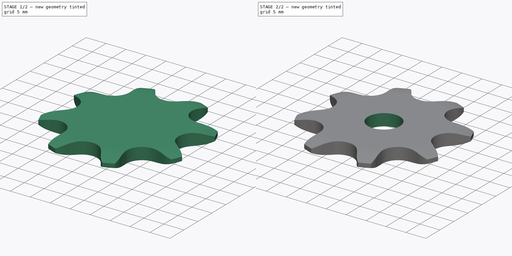
[diagram: build sequence overview — one tinted view per stage of 2, left to right]
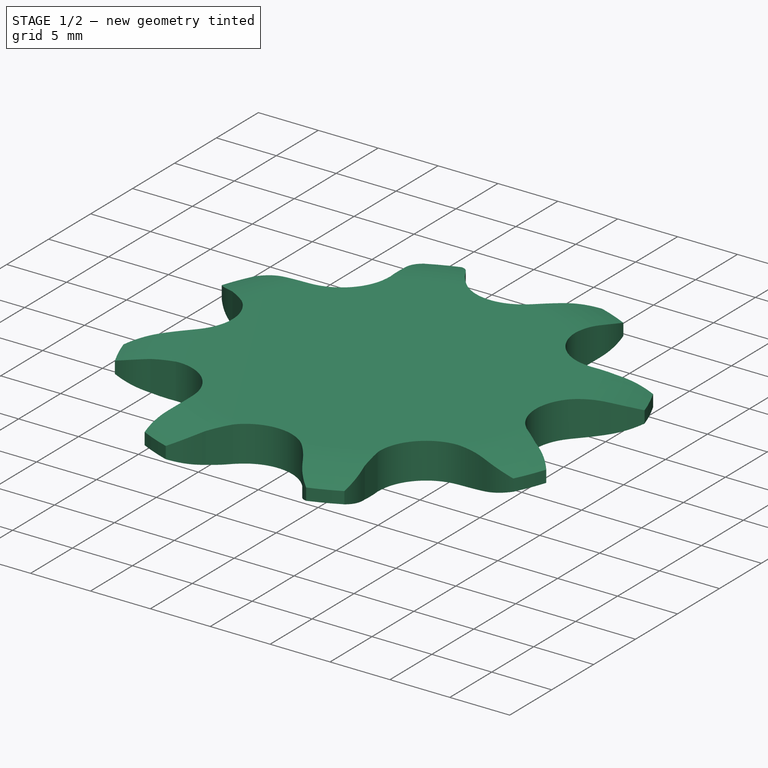
[diagram: stage 1 of 2 — iso view after this stage's code; geometry added in this stage tinted green]
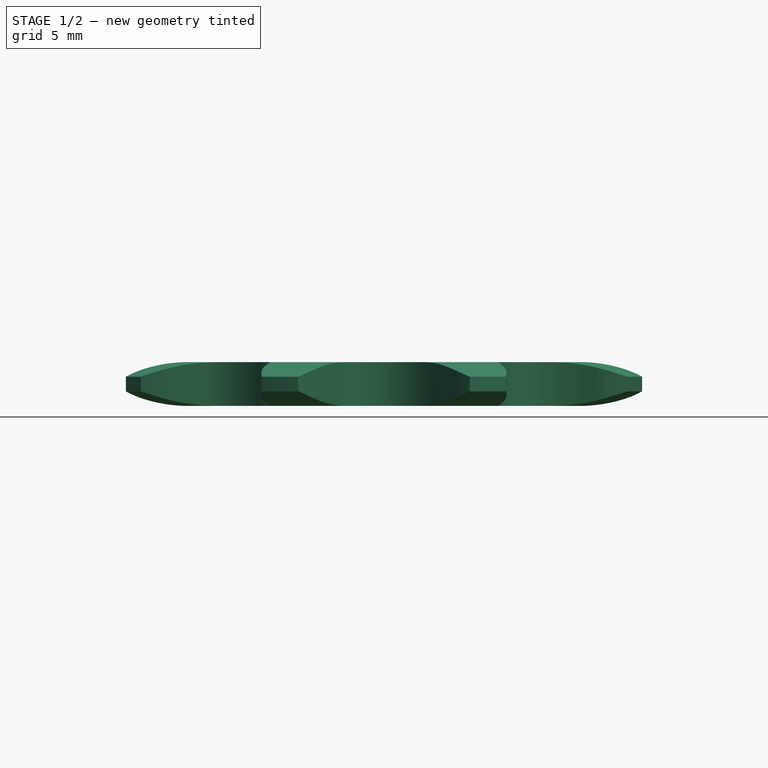
[diagram: stage 1 of 2 — front view after this stage's code; geometry added in this stage tinted green]
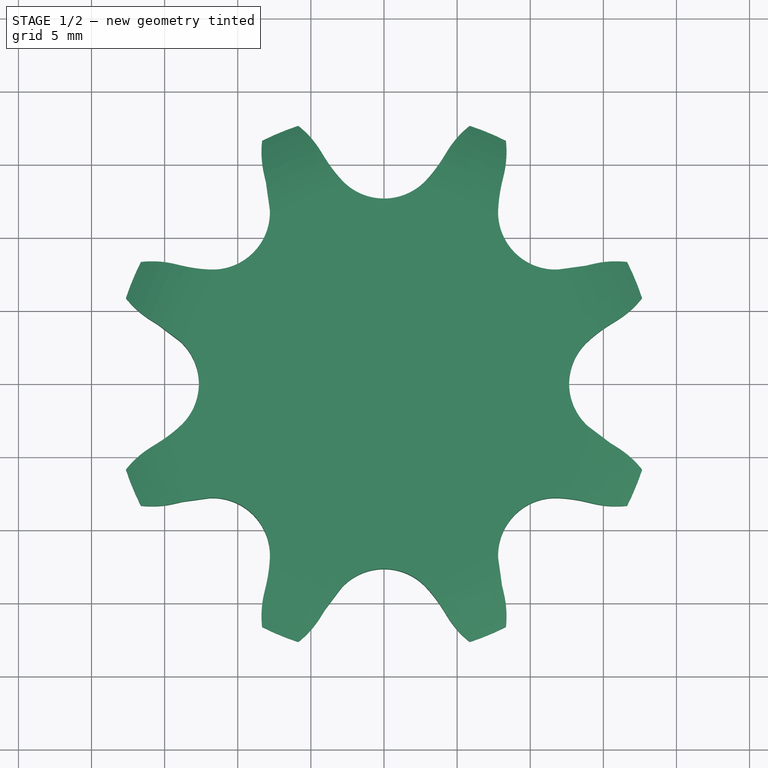
[diagram: stage 1 of 2 — top view after this stage's code; geometry added in this stage tinted green]
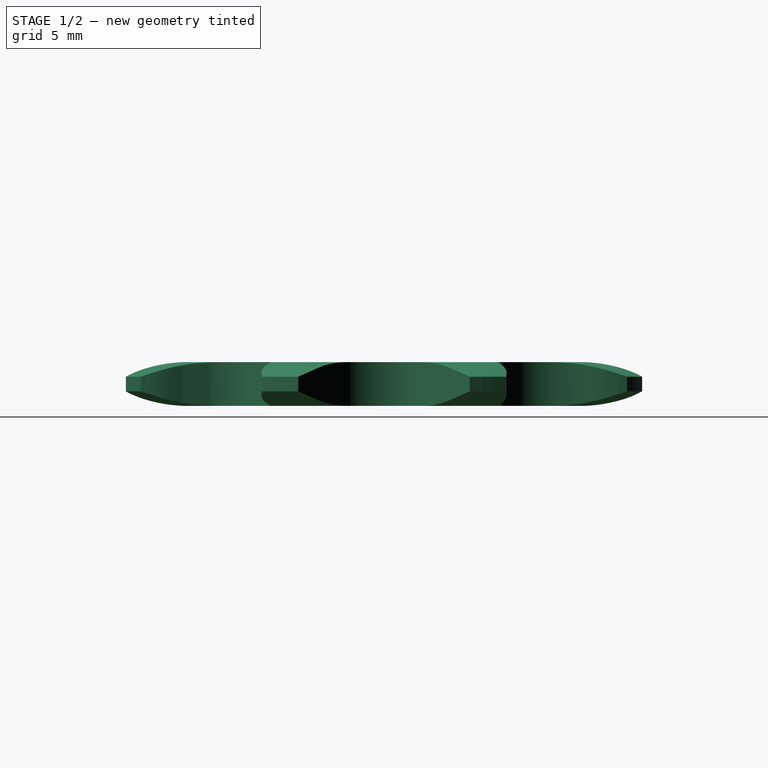
[diagram: stage 1 of 2 — right view after this stage's code; geometry added in this stage tinted green]
FCSTD DOCUMENT  (FreeCAD 0.20R29603 (Git))
Label: Plate Wheel simplex ½x⅛
License: Attribution 4.0 International (CC BY 4.0)
LicenseURL: http://creativecommons.org/licenses/by/4.0/
objects: Sketcher::SketchObject×2, Spreadsheet::Sheet×1, Part::Part2DObjectPython×1, PartDesign::Pad×1, PartDesign::Groove×1, PartDesign::Pocket×1, PartDesign::Body×1
note: 10 computed .brp shape members not serialized (recipe doc carries the construction recipe); baked Part::Feature solids carry a one-line shape summary decoded from their .brp

FEATURE [Spreadsheet::Sheet] Spreadsheet  label="Data"
  TeethNumber = 0
  cells = A1=Teeth Number; B1=P (Pitch); C1=Wc (Chain width); D1=Dr (Roller diameter); E1=Tr (Tooth radius); F1=Rw (Radius width); G1=Wt (Tooth width); H1=z (Number of teeth); I1=De (External Diameter); J1=Dp (pitch diameter); K1=D (Hole diameter); L1=H (Total height); A2==hiddenref(.TeethNumber.String); B2(P)==.B3; C2(Wc)==.C3; D2(Dr)==.D3; E2(Tr)==.E3; F2(Rw)==.F3; G2(Wt)==.G3; H2(z)==.H3; I2(De)==.I3; J2(Dp)==.J3; K2(D)==.K3; L2(H)==.L3; A3=Z 8; B3=12.7; C3=3.3; D3=7.75; E3=13; F3=1; G3=3; H3=8; I3=37.2; J3=33.18; K3=8; L3=4; A4=Z 9; B4=12.7; C4=3.3; D4=7.75; E4=13; F4=1; G4=3; H4=9; I4=41.5; J4=37.13; K4=8; L4=4; A5=Z 10; B5=12.7; C5=3.3; D5=7.75; E5=13; F5=1; G5=3; H5=10; I5=46.2; J5=41.1; K5=8; L5=4; A6=Z 11; B6=12.7; C6=3.3; D6=7.75; E6=13; F6=1; G6=3; H6=11; I6=49.6; J6=45.07; K6=8; L6=4; A7=Z 12; B7=12.7; C7=3.3; D7=7.75; E7=13; F7=1; G7=3; H7=12; I7=53.9; J7=49.07; K7=8; L7=4; A8=Z 13; B8=12.7; C8=3.3; D8=7.75; E8=13; F8=1; G8=3; H8=13; I8=58.4; J8=53.06; K8=8; L8=4; A9=Z 14; B9=12.7; C9=3.3; D9=7.75; E9=13; F9=1; G9=3; H9=14; I9=62.8; J9=57.07; K9=8; L9=4; A10=Z 15; B10=12.7; C10=3.3; D10=7.75; E10=13; F10=1; G10=3; H10=15; I10=66.8; J10=61.09; K10=8; L10=4; A11=Z 16; B11=12.7; C11=3.3; D11=7.75; E11=13; F11=1; G11=3; H11=16; I11=70.90000000000001; J11=65.09999999999999; K11=8; L11=4; A12=Z 17; B12=12.7; C12=3.3; D12=7.75; E12=13; F12=1; G12=3; H12=17; I12=74.90000000000001; J12=69.11; K12=8; L12=4; A13=Z 18; B13=12.7; C13=3.3; D13=7.75; E13=13; F13=1; G13=3; H13=18; I13=78.90000000000001; J13=73.14; K13=8; L13=4; A14=Z 19; B14=12.7; C14=3.3; D14=7.75; E14=13; F14=1; G14=3; H14=19; I14=82.90000000000001; J14=77.16; K14=8; L14=4; A15=Z 20; B15=12.7; C15=3.3; D15=7.75; E15=13; F15=1; G15=3; H15=20; I15=86.90000000000001; J15=81.19; K15=8; L15=4; A16=Z 21; B16=12.7; C16=3.3; D16=7.75; E16=13; F16=1; G16=3; H16=21; I16=91; J16=85.22; K16=8; L16=4; A17=Z 22; B17=12.7; C17=3.3; D17=7.75; E17=13; F17=1; G17=3; H17=22; +340 more cells
  expr: .TeethNumber.Enum = cells[<<A3:|>>]
  expr: .cells.Bind.B2.ZZ2 = tuple(.cells; <<B>> + str(hiddenref(TeethNumber) + 3); <<ZZ>> + str(hiddenref(TeethNumber) + 3))
FEATURE [Sketcher::SketchObject] Sketch  label="Radius"
  FullyConstrained = true
  MapMode = 5
  Placement = pos=(0,0,0) rot=(1,0,0;1.5708rad)
  Support = -> [XZ_Plane]
  expr: .Constraints.Re = <<Data>>.De / 2
  expr: .Constraints.Rw = <<Data>>.Rw
  expr: .Constraints.Tr = <<Data>>.Tr
  expr: .Constraints.Wt = <<Data>>.Wt
  sketch-geometry (10):
    g0: LineSegment StartX=13.6 StartY=0 StartZ=0 EndX=18.6 EndY=0 EndZ=0
    g1: LineSegment StartX=18.6 StartY=0 StartZ=0 EndX=18.6 EndY=1 EndZ=0
    g2: ArcOfCircle CenterX=13.6 CenterY=13 CenterZ=0 NormalX=0 NormalY=0 NormalZ=1 AngleXU=0 Radius=13 StartAngle=4.71239 EndAngle=5.10718
    g3: LineSegment StartX=18.6 StartY=1 StartZ=0 EndX=18.6 EndY=2 EndZ=0
    g4: LineSegment StartX=13.6 StartY=3 StartZ=0 EndX=18.6 EndY=3 EndZ=0
    g5: LineSegment StartX=18.6 StartY=3 StartZ=0 EndX=18.6 EndY=2 EndZ=0
    g6: ArcOfCircle CenterX=13.6 CenterY=-10 CenterZ=0 NormalX=0 NormalY=0 NormalZ=1 AngleXU=0 Radius=13 StartAngle=1.17601 EndAngle=1.5708
    g7: LineSegment StartX=18.6 StartY=3 StartZ=0 EndX=23.6 EndY=3 EndZ=0
    g8: LineSegment StartX=23.6 StartY=3 StartZ=0 EndX=23.6 EndY=0 EndZ=0
    g9: LineSegment StartX=23.6 StartY=0 StartZ=0 EndX=18.6 EndY=0 EndZ=0
  constraints (28):
    c: PointOnObject(g0,g-1)
    c: Horizontal(g0)
    c: Coincident(g0,g1)
    c: Vertical(g1)
    c: Tangent(g2,g0) = -1.5708
    c: Coincident(g2,g1)
    c: Coincident(g3,g1)
    c: Vertical(g3)
    c: Horizontal(g4)
    c: Coincident(g4,g5)
    c: Vertical(g5)
    c: Coincident(g6,g5)
    c: Tangent(g6,g4) = 1.5708
    c: Coincident(g5,g3)
    c: Equal(g2,g6)
    c: Equal(g5,g1)
    c: Radius(g2) = 13  'Tr'
    c: DistanceY(g0,g4) = 3  'Wt'
    c: DistanceX(g0) = 18.6  'Re'
    c: DistanceY(g1,g1) = 1  'Rw'
    c: Coincident(g4,g7)
    c: Coincident(g7,g8)
    c: Vertical(g8)
    c: Coincident(g8,g9)
    c: Coincident(g9,g0)
    c: Horizontal(g7)
    c: Horizontal(g9)
    c: Equal(g0,g9)
FEATURE [Part::Part2DObjectPython] Sprocket  label="Teeth sketch"  # Draft 2D object (typed FeaturePython)
  ANSISize = 35
  NumberOfTeeth = 8
  Pitch = 12.7
  RollerDiameter = 7.75
  expr: NumberOfTeeth = <<Data>>.z
  expr: Pitch = <<Data>>.P
  expr: RollerDiameter = <<Data>>.Dr
FEATURE [PartDesign::Pad] Pad  label="Teeth"
  Direction = (0,0,1)
  Length = 3
  Length2 = 100
  Profile = -> Sprocket
  Type = 0
  expr: Length = <<Data>>.Wt
FEATURE [PartDesign::Groove] Groove  label="Teeth Radius"
  Angle = 360
  Axis = (-3e-16,3e-16,1)
  Base = (0,0,0)
  BaseFeature = -> Pad
  Profile = -> Sketch
  ReferenceAxis = -> Z_Axis
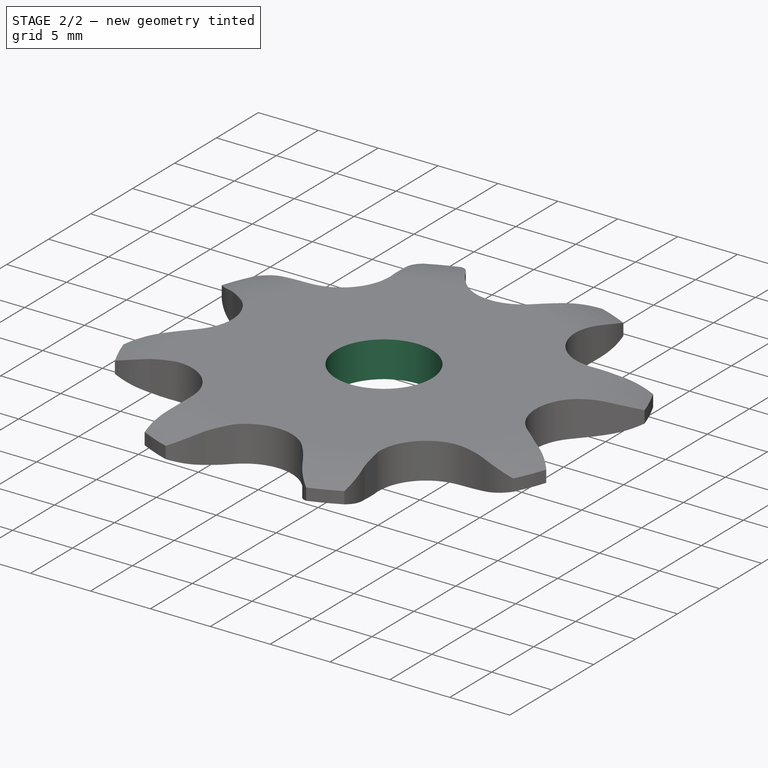
[diagram: stage 2 of 2 — iso view after this stage's code; geometry added in this stage tinted green]
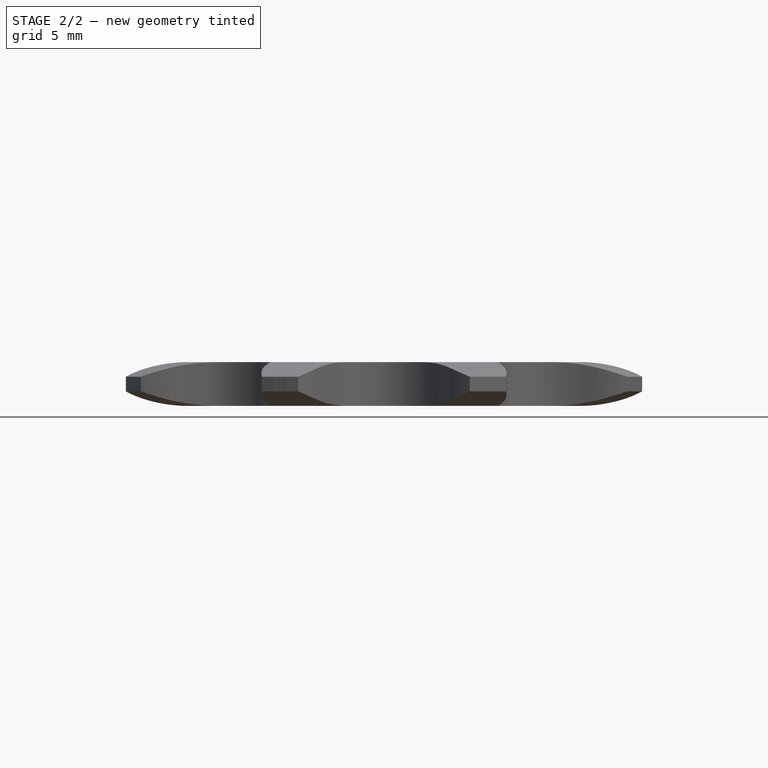
[diagram: stage 2 of 2 — front view after this stage's code; geometry added in this stage tinted green]
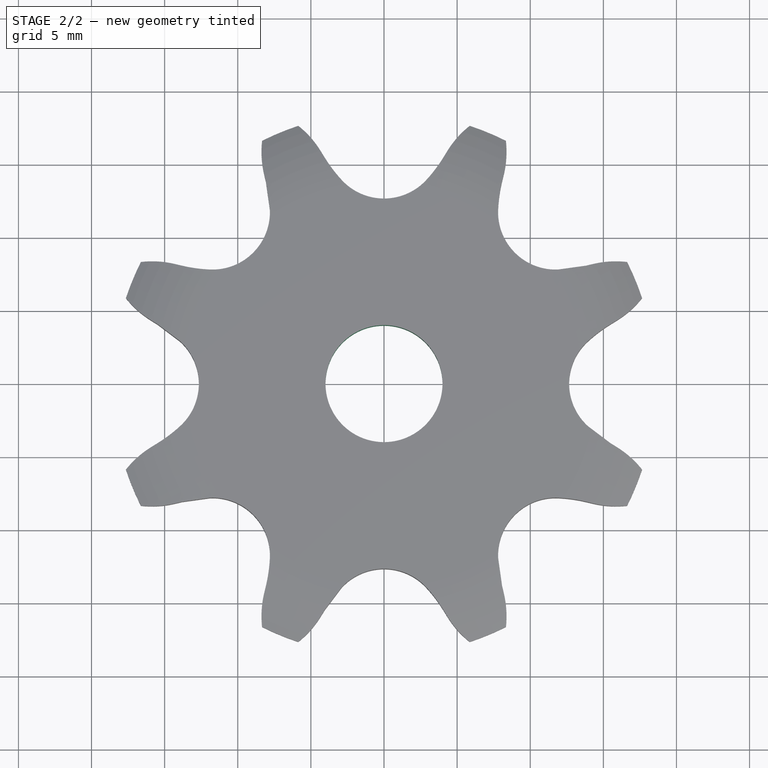
[diagram: stage 2 of 2 — top view after this stage's code; geometry added in this stage tinted green]
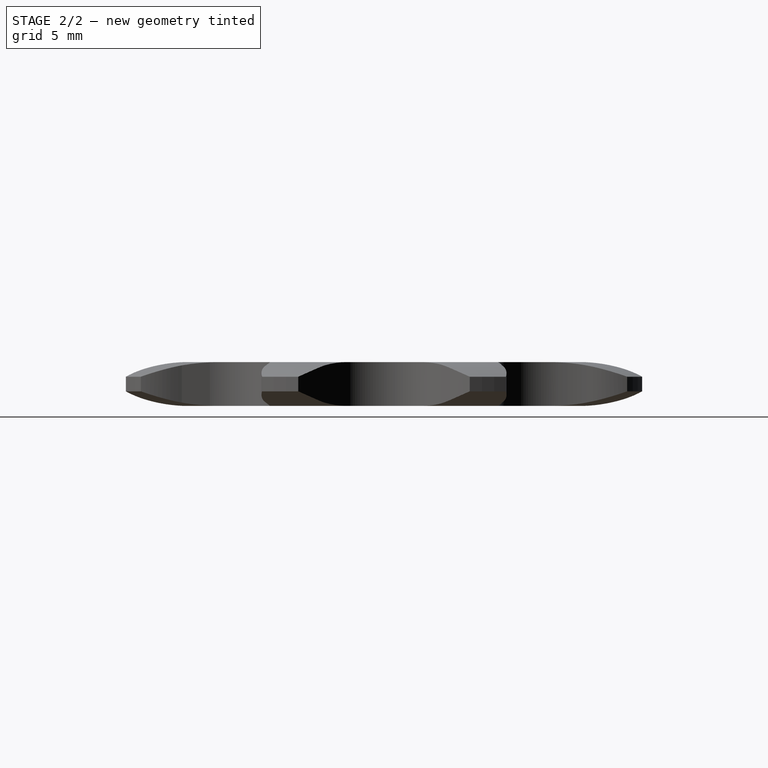
[diagram: stage 2 of 2 — right view after this stage's code; geometry added in this stage tinted green]
FEATURE [Sketcher::SketchObject] Sketch001  label="Hole Sketch"
  FullyConstrained = true
  MapMode = 5
  Support = -> [XY_Plane]
  expr: .Constraints.D = <<Data>>.D
  sketch-geometry (1):
    g0: Circle CenterX=0 CenterY=0 CenterZ=0 NormalX=0 NormalY=0 NormalZ=1 AngleXU=0 Radius=4
  constraints (2):
    c: Coincident(g0,g-1)
    c: Diameter(g0) = 8  'D'
FEATURE [PartDesign::Pocket] Pocket  label="Hole"
  BaseFeature = -> Groove
  Direction = (0,0,-1)
  Length = 5
  Length2 = 100
  Midplane = true
  Profile = -> Sketch001
  Type = 1
FEATURE [PartDesign::Body] Body  label="Plate Wheel simplex ½x⅛"
  Group = -> [Sprocket,Pad,Sketch,Groove,Sketch001,Pocket]
  Origin = -> Origin
  Tip = -> Pocket
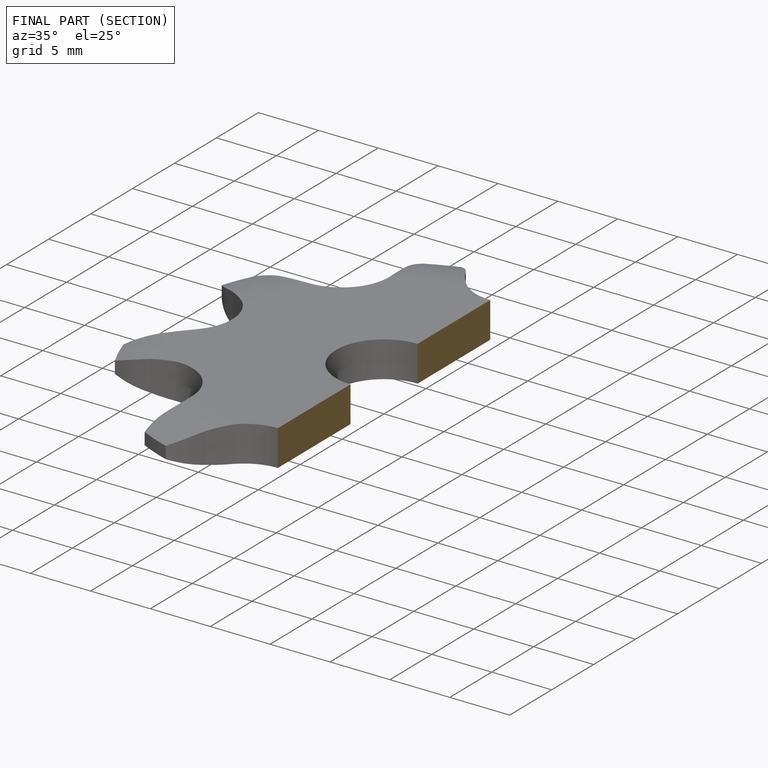
[diagram: finished part — half-section view (interior)]
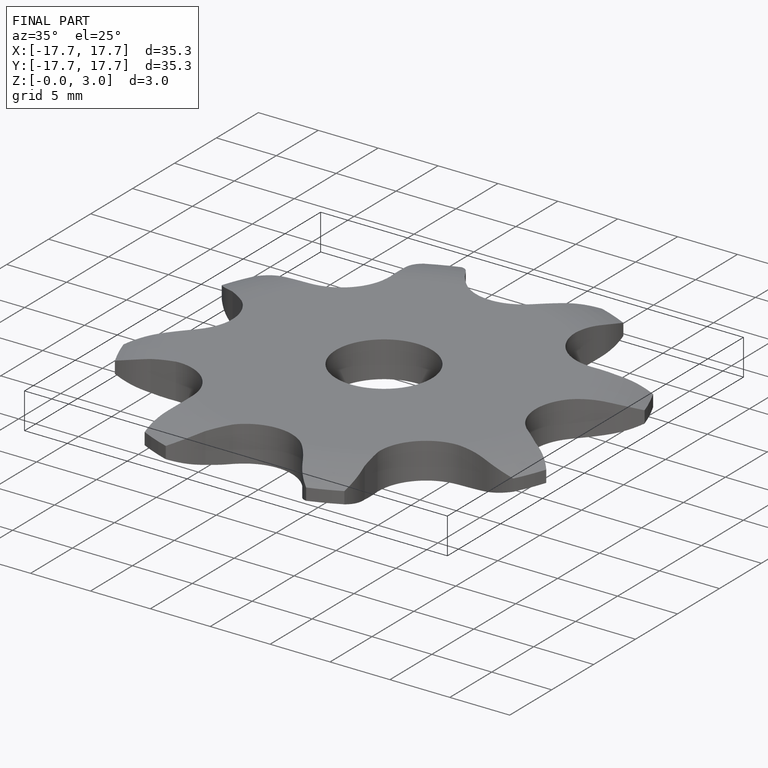
[diagram: finished part — iso view with bounding-box wireframe]
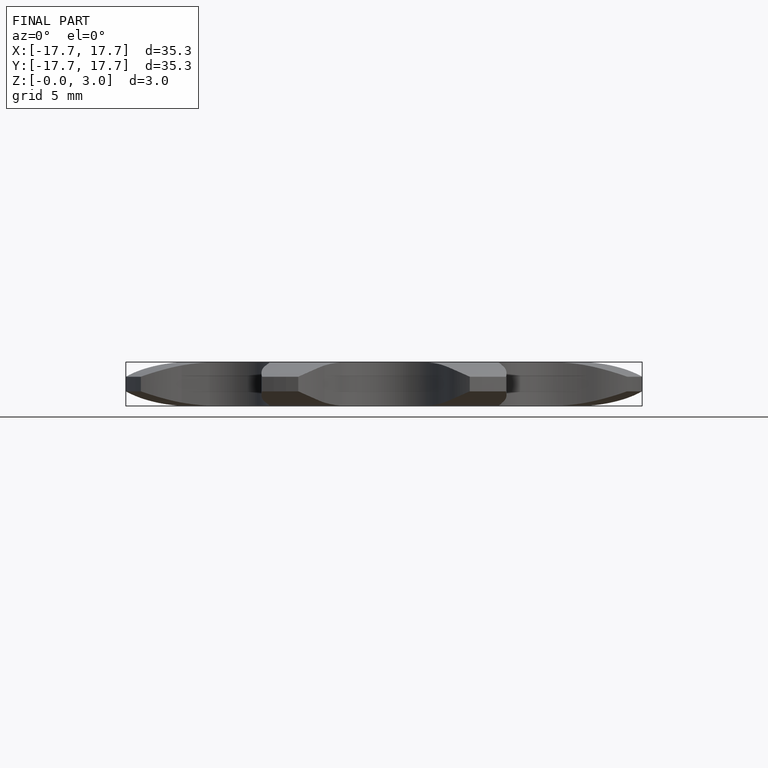
[diagram: finished part — front view with bounding-box wireframe]
